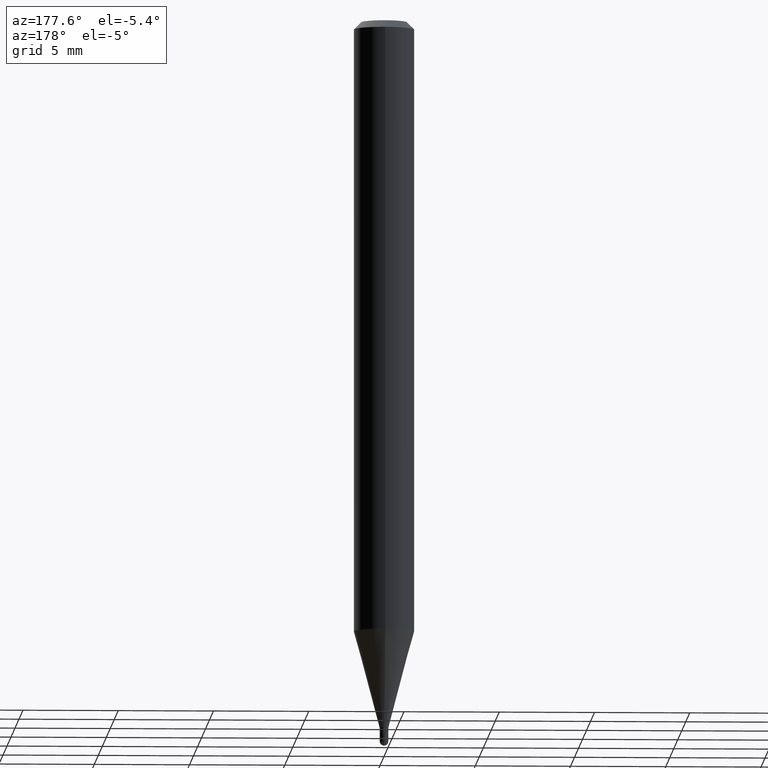
[diagram: clean part render]
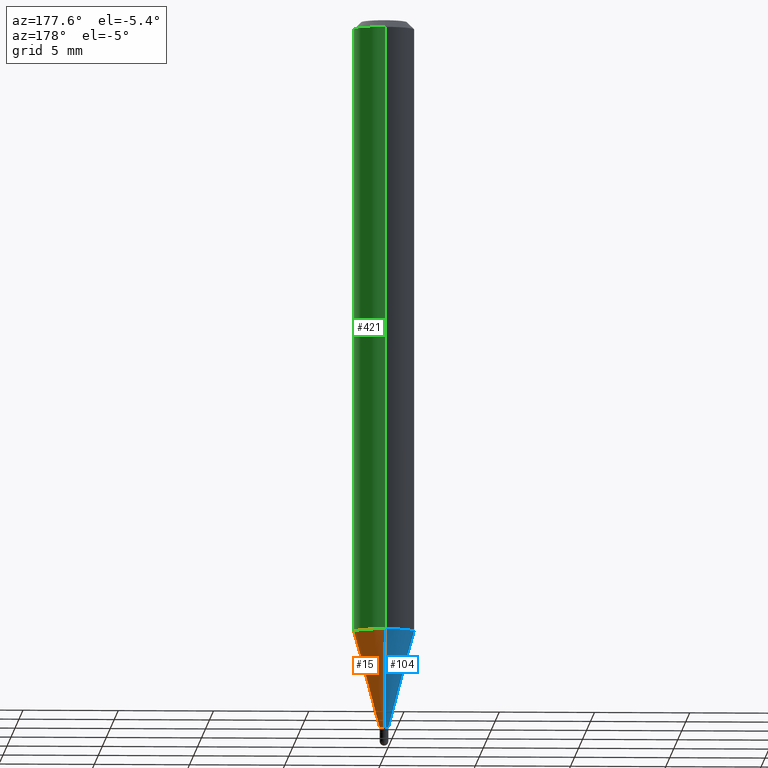
[diagram: same view with three faces highlighted in distinct colors, each labeled with its STEP entity id]
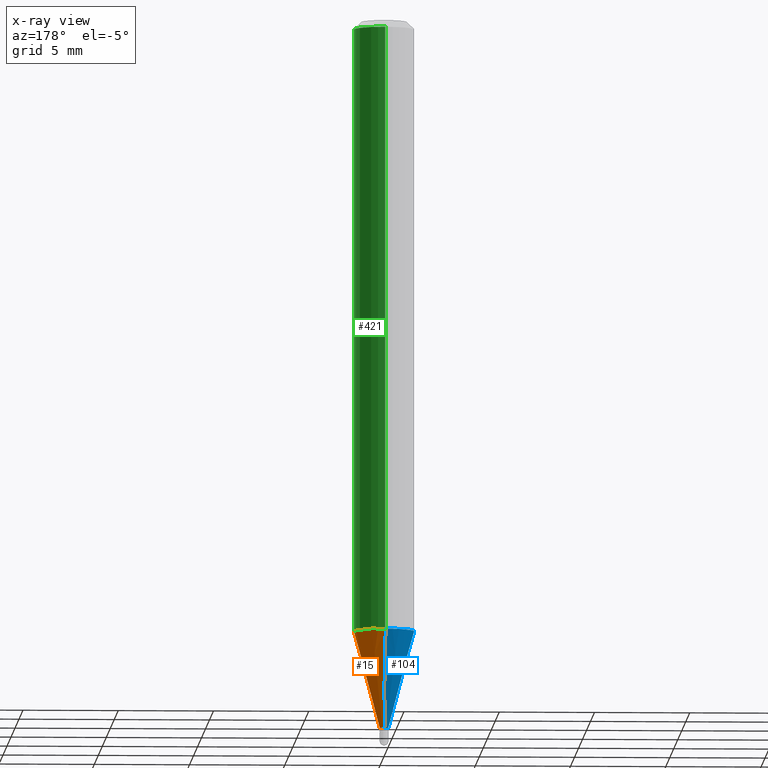
[diagram: x-ray of the same camera — body ghosted, the three highlighted faces saturated]
A machine part, auxiliary view with three faces highlighted in distinct colors.
The next image is the same camera in x-ray (body ghosted, the three faces saturated) — at least one of them is partly hidden behind the body in this view.
Their STEP definitions:

[orange] entity #15 — the highlighted conical surface has half-angle 15 deg.
#10 = ORIENTED_EDGE ( 'NONE', *, *, #112, .T. ) ;
#12 = DIRECTION ( 'NONE',  ( -2.445460731659574358E-29, 3.491492902023324222E-15, 1.000000000000000000 ) ) ;
#15 = ADVANCED_FACE ( 'NONE', ( #50 ), #113, .T. ) ;
#26 = VECTOR ( 'NONE', #482, 39.37007874015748143 ) ;
#29 = DIRECTION ( 'NONE',  ( -6.982962677686265922E-15, -1.000000000000000000, 0.000000000000000000 ) ) ;
#50 = FACE_OUTER_BOUND ( 'NONE', #240, .T. ) ;
#59 = CARTESIAN_POINT ( 'NONE',  ( 3.577709050417957687E-29, -5.108054115660124222E-15, -1.463000000000000300 ) ) ;
#61 = AXIS2_PLACEMENT_3D ( 'NONE', #134, #74, #175 ) ;
#74 = DIRECTION ( 'NONE',  ( -2.445460731659574358E-29, 3.491492902023324222E-15, 1.000000000000000000 ) ) ;
#84 = ORIENTED_EDGE ( 'NONE', *, *, #404, .F. ) ;
#90 = CARTESIAN_POINT ( 'NONE',  ( -6.284666409914007187E-17, -0.009000000000005030018, -1.463000000000000300 ) ) ;
#93 = ORIENTED_EDGE ( 'NONE', *, *, #152, .T. ) ;
#112 = EDGE_CURVE ( 'NONE', #309, #490, #144, .T. ) ;
#113 = CONICAL_SURFACE ( 'NONE', #353, 0.008999999999999922992, 0.2617993877991502960 ) ;
#116 = VERTEX_POINT ( 'NONE', #143 ) ;
#134 = CARTESIAN_POINT ( 'NONE',  ( 3.089436822549915707E-29, -4.410926169263107642E-15, -1.263335281795065823 ) ) ;
#143 = CARTESIAN_POINT ( 'NONE',  ( -4.364351673553608052E-16, -0.06250000000000441314, -1.263335281795065601 ) ) ;
#144 = CIRCLE ( 'NONE', #381, 0.008999999999999922992 ) ;
#152 = EDGE_CURVE ( 'NONE', #490, #328, #255, .T. ) ;
#165 = DIRECTION ( 'NONE',  ( -6.982962677686265922E-15, -1.000000000000000000, 0.000000000000000000 ) ) ;
#175 = DIRECTION ( 'NONE',  ( -6.982962677686265922E-15, -1.000000000000000000, 4.370956789862821150E-15 ) ) ;
#197 = EDGE_CURVE ( 'NONE', #116, #328, #501, .T. ) ;
#210 = ORIENTED_EDGE ( 'NONE', *, *, #197, .F. ) ;
#221 = DIRECTION ( 'NONE',  ( -2.445460731659574358E-29, 3.491492902023324222E-15, 1.000000000000000000 ) ) ;
#240 = EDGE_LOOP ( 'NONE', ( #10, #93, #210, #84 ) ) ;
#255 = LINE ( 'NONE', #457, #487 ) ;
#309 = VERTEX_POINT ( 'NONE', #466 ) ;
#328 = VERTEX_POINT ( 'NONE', #507 ) ;
#353 = AXIS2_PLACEMENT_3D ( 'NONE', #59, #12, #165 ) ;
#378 = CARTESIAN_POINT ( 'NONE',  ( 3.577709050417957687E-29, -5.108054115660124222E-15, -1.463000000000000300 ) ) ;
#381 = AXIS2_PLACEMENT_3D ( 'NONE', #378, #221, #29 ) ;
#404 = EDGE_CURVE ( 'NONE', #309, #116, #473, .T. ) ;
#457 = CARTESIAN_POINT ( 'NONE',  ( 6.394884621844422714E-17, 0.008999999999994814232, -1.463000000000000300 ) ) ;
#466 = CARTESIAN_POINT ( 'NONE',  ( -6.284666409914007187E-17, -0.009000000000005030018, -1.463000000000000300 ) ) ;
#473 = LINE ( 'NONE', #90, #26 ) ;
#482 = DIRECTION ( 'NONE',  ( -1.807323732225330928E-15, -0.2588190451025182970, 0.9659258262890689783 ) ) ;
#487 = VECTOR ( 'NONE', #500, 39.37007874015748143 ) ;
#488 = CARTESIAN_POINT ( 'NONE',  ( 2.540190280342689277E-16, 0.008999999999994814232, -1.463000000000000300 ) ) ;
#490 = VERTEX_POINT ( 'NONE', #488 ) ;
#500 = DIRECTION ( 'NONE',  ( 1.839019923739601104E-15, 0.2588190451025250693, 0.9659258262890670910 ) ) ;
#501 = CIRCLE ( 'NONE', #61, 0.06250000000000000000 ) ;
#507 = CARTESIAN_POINT ( 'NONE',  ( 4.440892098500932831E-16, 0.06249999999999556605, -1.263335281795066045 ) ) ;

[blue] entity #104 — the highlighted conical surface has half-angle 15 deg.
#20 = CARTESIAN_POINT ( 'NONE',  ( 3.577709050417957687E-29, -5.108054115660124222E-15, -1.463000000000000300 ) ) ;
#26 = VECTOR ( 'NONE', #482, 39.37007874015748143 ) ;
#35 = EDGE_CURVE ( 'NONE', #490, #309, #416, .T. ) ;
#51 = AXIS2_PLACEMENT_3D ( 'NONE', #349, #147, #503 ) ;
#89 = CARTESIAN_POINT ( 'NONE',  ( 3.577709050417957687E-29, -5.108054115660124222E-15, -1.463000000000000300 ) ) ;
#90 = CARTESIAN_POINT ( 'NONE',  ( -6.284666409914007187E-17, -0.009000000000005030018, -1.463000000000000300 ) ) ;
#104 = ADVANCED_FACE ( 'NONE', ( #172 ), #508, .T. ) ;
#114 = CIRCLE ( 'NONE', #51, 0.06250000000000000000 ) ;
#116 = VERTEX_POINT ( 'NONE', #143 ) ;
#123 = ORIENTED_EDGE ( 'NONE', *, *, #152, .F. ) ;
#143 = CARTESIAN_POINT ( 'NONE',  ( -4.364351673553608052E-16, -0.06250000000000441314, -1.263335281795065601 ) ) ;
#147 = DIRECTION ( 'NONE',  ( -2.445460731659574358E-29, 3.491492902023324222E-15, 1.000000000000000000 ) ) ;
#152 = EDGE_CURVE ( 'NONE', #490, #328, #255, .T. ) ;
#153 = ORIENTED_EDGE ( 'NONE', *, *, #316, .F. ) ;
#172 = FACE_OUTER_BOUND ( 'NONE', #230, .T. ) ;
#194 = AXIS2_PLACEMENT_3D ( 'NONE', #89, #395, #247 ) ;
#230 = EDGE_LOOP ( 'NONE', ( #123, #474, #423, #153 ) ) ;
#247 = DIRECTION ( 'NONE',  ( -6.982962677686265922E-15, -1.000000000000000000, 0.000000000000000000 ) ) ;
#255 = LINE ( 'NONE', #457, #487 ) ;
#275 = AXIS2_PLACEMENT_3D ( 'NONE', #20, #331, #498 ) ;
#309 = VERTEX_POINT ( 'NONE', #466 ) ;
#316 = EDGE_CURVE ( 'NONE', #328, #116, #114, .T. ) ;
#328 = VERTEX_POINT ( 'NONE', #507 ) ;
#331 = DIRECTION ( 'NONE',  ( -2.445460731659574358E-29, 3.491492902023324222E-15, 1.000000000000000000 ) ) ;
#349 = CARTESIAN_POINT ( 'NONE',  ( 3.089436822549915707E-29, -4.410926169263107642E-15, -1.263335281795065823 ) ) ;
#395 = DIRECTION ( 'NONE',  ( -2.445460731659574358E-29, 3.491492902023324222E-15, 1.000000000000000000 ) ) ;
#404 = EDGE_CURVE ( 'NONE', #309, #116, #473, .T. ) ;
#416 = CIRCLE ( 'NONE', #194, 0.008999999999999922992 ) ;
#423 = ORIENTED_EDGE ( 'NONE', *, *, #404, .T. ) ;
#457 = CARTESIAN_POINT ( 'NONE',  ( 6.394884621844422714E-17, 0.008999999999994814232, -1.463000000000000300 ) ) ;
#466 = CARTESIAN_POINT ( 'NONE',  ( -6.284666409914007187E-17, -0.009000000000005030018, -1.463000000000000300 ) ) ;
#473 = LINE ( 'NONE', #90, #26 ) ;
#474 = ORIENTED_EDGE ( 'NONE', *, *, #35, .T. ) ;
#482 = DIRECTION ( 'NONE',  ( -1.807323732225330928E-15, -0.2588190451025182970, 0.9659258262890689783 ) ) ;
#487 = VECTOR ( 'NONE', #500, 39.37007874015748143 ) ;
#488 = CARTESIAN_POINT ( 'NONE',  ( 2.540190280342689277E-16, 0.008999999999994814232, -1.463000000000000300 ) ) ;
#490 = VERTEX_POINT ( 'NONE', #488 ) ;
#498 = DIRECTION ( 'NONE',  ( -6.982962677686265922E-15, -1.000000000000000000, 0.000000000000000000 ) ) ;
#500 = DIRECTION ( 'NONE',  ( 1.839019923739601104E-15, 0.2588190451025250693, 0.9659258262890670910 ) ) ;
#503 = DIRECTION ( 'NONE',  ( -6.982962677686265922E-15, -1.000000000000000000, 4.370956789862821150E-15 ) ) ;
#507 = CARTESIAN_POINT ( 'NONE',  ( 4.440892098500932831E-16, 0.06249999999999556605, -1.263335281795066045 ) ) ;
#508 = CONICAL_SURFACE ( 'NONE', #275, 0.008999999999999922992, 0.2617993877991502960 ) ;

[green] entity #421 — the highlighted cylindrical surface (edge-blend (fillet) strip) has radius 1.5875 mm, axis along (-0, 0, 1).
#13 = CARTESIAN_POINT ( 'NONE',  ( 4.440892098500625669E-16, 0.06250000000000000000, -2.182183063764577639E-16 ) ) ;
#45 = CYLINDRICAL_SURFACE ( 'NONE', #320, 0.06250000000000000000 ) ;
#61 = AXIS2_PLACEMENT_3D ( 'NONE', #134, #74, #175 ) ;
#74 = DIRECTION ( 'NONE',  ( -2.445460731659574358E-29, 3.491492902023324222E-15, 1.000000000000000000 ) ) ;
#92 = FACE_OUTER_BOUND ( 'NONE', #122, .T. ) ;
#116 = VERTEX_POINT ( 'NONE', #143 ) ;
#122 = EDGE_LOOP ( 'NONE', ( #193, #389, #315, #384 ) ) ;
#134 = CARTESIAN_POINT ( 'NONE',  ( 3.089436822549915707E-29, -4.410926169263107642E-15, -1.263335281795065823 ) ) ;
#143 = CARTESIAN_POINT ( 'NONE',  ( -4.364351673553608052E-16, -0.06250000000000441314, -1.263335281795065601 ) ) ;
#157 = DIRECTION ( 'NONE',  ( -2.445460731659574358E-29, 3.491492902023324222E-15, 1.000000000000000000 ) ) ;
#160 = CIRCLE ( 'NONE', #233, 0.06250000000000000000 ) ;
#175 = DIRECTION ( 'NONE',  ( -6.982962677686265922E-15, -1.000000000000000000, 4.370956789862821150E-15 ) ) ;
#176 = EDGE_CURVE ( 'NONE', #116, #363, #217, .T. ) ;
#193 = ORIENTED_EDGE ( 'NONE', *, *, #197, .T. ) ;
#197 = EDGE_CURVE ( 'NONE', #116, #328, #501, .T. ) ;
#204 = CARTESIAN_POINT ( 'NONE',  ( 0.000000000000000000, 0.000000000000000000, 0.000000000000000000 ) ) ;
#212 = VECTOR ( 'NONE', #455, 39.37007874015748143 ) ;
#215 = EDGE_CURVE ( 'NONE', #363, #232, #160, .T. ) ;
#217 = LINE ( 'NONE', #374, #212 ) ;
#222 = CARTESIAN_POINT ( 'NONE',  ( 3.668191097489363552E-31, -5.237239353034989144E-17, -0.01500000000000000812 ) ) ;
#231 = CARTESIAN_POINT ( 'NONE',  ( -4.364351673553912750E-16, -0.06250000000000005551, -0.01499999999999979128 ) ) ;
#232 = VERTEX_POINT ( 'NONE', #408 ) ;
#233 = AXIS2_PLACEMENT_3D ( 'NONE', #222, #256, #418 ) ;
#236 = LINE ( 'NONE', #13, #244 ) ;
#244 = VECTOR ( 'NONE', #157, 39.37007874015748143 ) ;
#246 = DIRECTION ( 'NONE',  ( -2.445460731659574358E-29, 3.491492902023324222E-15, 1.000000000000000000 ) ) ;
#256 = DIRECTION ( 'NONE',  ( -2.445460731659574358E-29, 3.491492902023324222E-15, 1.000000000000000000 ) ) ;
#315 = ORIENTED_EDGE ( 'NONE', *, *, #215, .F. ) ;
#320 = AXIS2_PLACEMENT_3D ( 'NONE', #204, #246, #364 ) ;
#328 = VERTEX_POINT ( 'NONE', #507 ) ;
#363 = VERTEX_POINT ( 'NONE', #231 ) ;
#364 = DIRECTION ( 'NONE',  ( -6.982962677686265922E-15, -1.000000000000000000, 3.491492902023324222E-15 ) ) ;
#374 = CARTESIAN_POINT ( 'NONE',  ( -4.364351673553916201E-16, -0.06250000000000000000, 2.182183063764577639E-16 ) ) ;
#384 = ORIENTED_EDGE ( 'NONE', *, *, #176, .F. ) ;
#389 = ORIENTED_EDGE ( 'NONE', *, *, #477, .T. ) ;
#408 = CARTESIAN_POINT ( 'NONE',  ( 4.440892098500935790E-16, 0.06249999999999993755, -0.01500000000000022669 ) ) ;
#418 = DIRECTION ( 'NONE',  ( -6.982962677686265922E-15, -1.000000000000000000, 3.483106191921935554E-15 ) ) ;
#421 = ADVANCED_FACE ( 'NONE', ( #92 ), #45, .T. ) ;
#455 = DIRECTION ( 'NONE',  ( -2.445460731659574358E-29, 3.491492902023324222E-15, 1.000000000000000000 ) ) ;
#477 = EDGE_CURVE ( 'NONE', #328, #232, #236, .T. ) ;
#501 = CIRCLE ( 'NONE', #61, 0.06250000000000000000 ) ;
#507 = CARTESIAN_POINT ( 'NONE',  ( 4.440892098500932831E-16, 0.06249999999999556605, -1.263335281795066045 ) ) ;